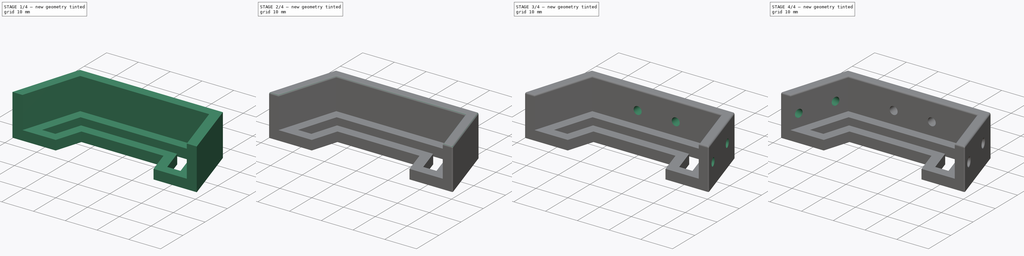
[diagram: build sequence overview — one tinted view per stage of 4, left to right]
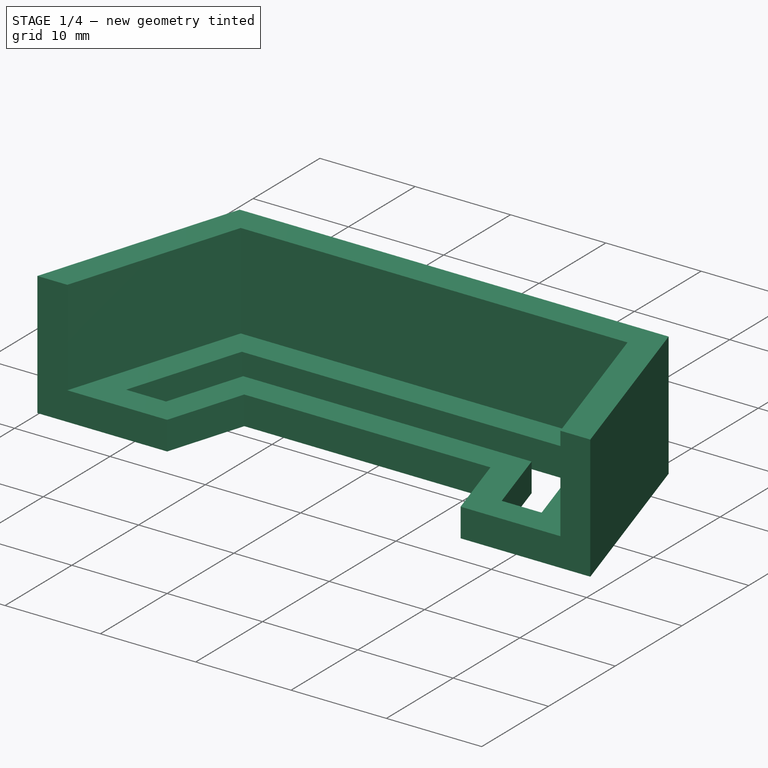
[diagram: stage 1 of 4 — iso view after this stage's code; geometry added in this stage tinted green]
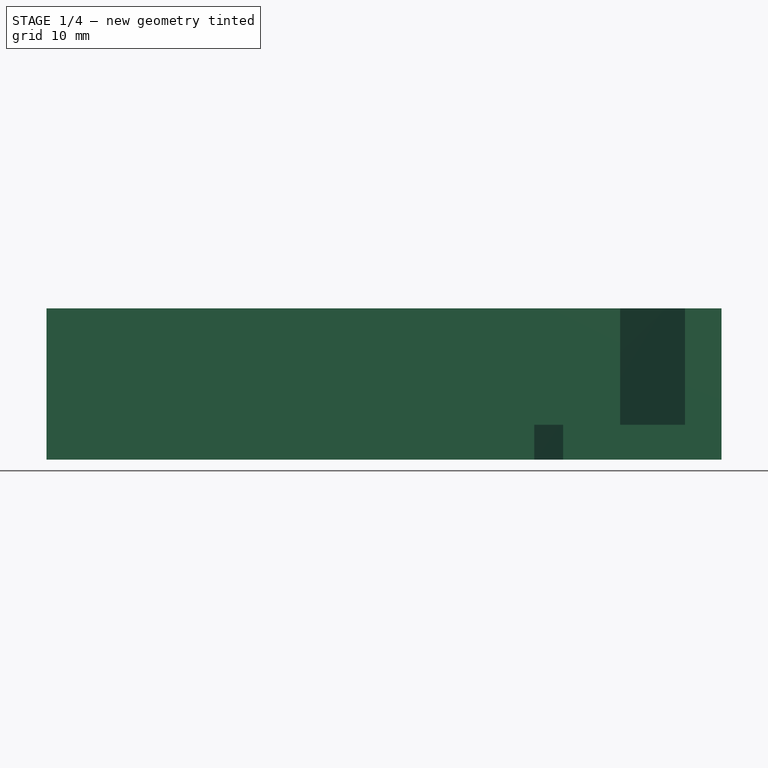
[diagram: stage 1 of 4 — front view after this stage's code; geometry added in this stage tinted green]
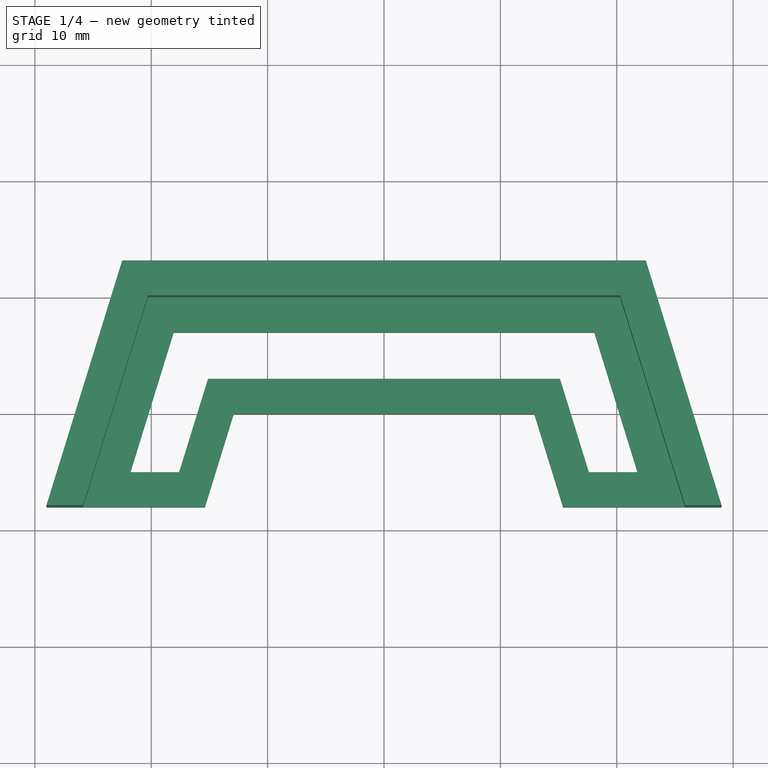
[diagram: stage 1 of 4 — top view after this stage's code; geometry added in this stage tinted green]
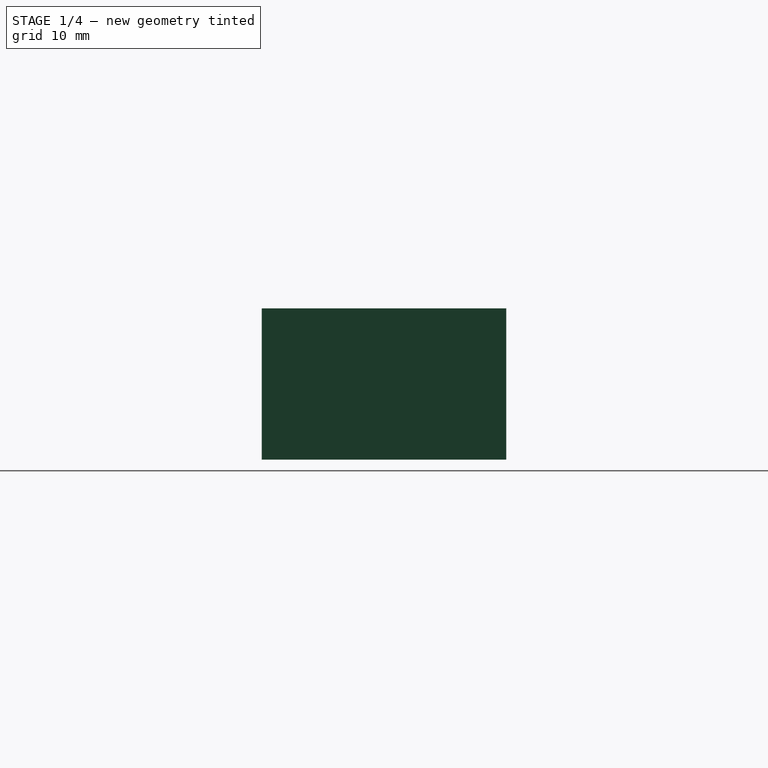
[diagram: stage 1 of 4 — right view after this stage's code; geometry added in this stage tinted green]
FCSTD DOCUMENT  (FreeCAD 0.17R12018 (Git))
Label: ferbot_sensor_v3
License: All rights reserved
LicenseURL: http://en.wikipedia.org/wiki/All_rights_reserved
objects: Sketcher::SketchObject×7, PartDesign::Fillet×7, PartDesign::Pocket×5, App::Part×1, PartDesign::Pad×1, PartDesign::Body×1
note: 27 computed .brp shape members not serialized (recipe doc carries the construction recipe); baked Part::Feature solids carry a one-line shape summary decoded from their .brp

FEATURE [App::Part] Part
  License = CC BY 3.0
  LicenseURL = http://creativecommons.org/licenses/by/3.0/
  Origin = -> Origin
FEATURE [Sketcher::SketchObject] Sketch
  MapMode = 5
  Support = -> [XY_Plane001]
  sketch-geometry (8):
    g0: LineSegment StartX=-22.5 StartY=13 StartZ=0 EndX=22.5 EndY=13 EndZ=0
    g1: LineSegment StartX=22.5 StartY=13 StartZ=0 EndX=29 EndY=-8.01785 EndZ=0
    g2: LineSegment StartX=29 StartY=-8.01785 StartZ=0 EndX=15.3925 EndY=-8.01785 EndZ=0
    g3: LineSegment StartX=15.3925 StartY=-8.01785 StartZ=0 EndX=12.9129 EndY=0 EndZ=0
    g4: LineSegment StartX=12.9129 StartY=0 StartZ=0 EndX=-12.9129 EndY=0 EndZ=0
    g5: LineSegment StartX=-12.9129 StartY=0 StartZ=0 EndX=-15.3925 EndY=-8.01785 EndZ=0
    g6: LineSegment StartX=-15.3925 StartY=-8.01785 StartZ=0 EndX=-29 EndY=-8.01785 EndZ=0
    g7: LineSegment StartX=-29 StartY=-8.01785 StartZ=0 EndX=-22.5 EndY=13 EndZ=0
  constraints (23):
    c: Horizontal(g0)
    c: Coincident(g0,g1)
    c: Coincident(g1,g2)
    c: Horizontal(g2)
    c: Coincident(g2,g3)
    c: Coincident(g3,g4)
    c: Horizontal(g4)
    c: Coincident(g4,g5)
    c: Coincident(g5,g6)
    c: Horizontal(g6)
    c: Coincident(g6,g7)
    c: Coincident(g7,g0)
    c: Parallel(g5,g7)
    c: Parallel(g3,g1)
    c: Equal(g2,g6)
    c: Symmetric(g4,g4,g-1)
    c: Distance(g3,g0) = 13
    c: Distance(g5,g7) = 13
    c: DistanceX(g0,g0) = 45
    c: DistanceX(g6,g1) = 58
    c: Symmetric(g0,g0,g-2)
    c: Distance(g7) = 22
    c: Equal(g1,g7)
FEATURE [PartDesign::Pad] Pad
  Length = 13
  Length2 = 100
  Profile = -> Sketch
  Type = 0
FEATURE [Sketcher::SketchObject] Sketch001
  MapMode = 5
  Support = -> [XY_Plane001]
FEATURE [Sketcher::SketchObject] Sketch002
  ExternalGeometry = -> [Pad]
  MapMode = 5
  Placement = pos=(0,0,13) rot=(0,0,1;0rad)
  Support = -> [Pad]
  sketch-geometry (8):
    g0: LineSegment StartX=-25.8598 StartY=-8.01785 StartZ=0 EndX=-15.3925 EndY=-8.01785 EndZ=0
    g1: LineSegment StartX=-15.3925 StartY=-8.01785 StartZ=0 EndX=-12.9129 EndY=0 EndZ=0
    g2: LineSegment StartX=-12.9129 StartY=0 StartZ=0 EndX=12.9129 EndY=0 EndZ=0
    g3: LineSegment StartX=12.9129 StartY=0 StartZ=0 EndX=15.3925 EndY=-8.01785 EndZ=0
    g4: LineSegment StartX=15.3925 StartY=-8.01785 StartZ=0 EndX=25.8598 EndY=-8.01785 EndZ=0
    g5: LineSegment StartX=25.8598 StartY=-8.01785 StartZ=0 EndX=20.2876 EndY=10 EndZ=0
    g6: LineSegment StartX=20.2876 StartY=10 StartZ=0 EndX=-20.2876 EndY=10 EndZ=0
    g7: LineSegment StartX=-20.2876 StartY=10 StartZ=0 EndX=-25.8598 EndY=-8.01785 EndZ=0
  constraints (21):
    c: Coincident(g0,g1)
    c: Coincident(g1,g2)
    c: Horizontal(g2)
    c: Coincident(g2,g3)
    c: Coincident(g3,g4)
    c: Coincident(g4,g5)
    c: Coincident(g5,g6)
    c: Horizontal(g6)
    c: Coincident(g6,g7)
    c: Coincident(g7,g0)
    c: Coincident(g0,g-6)
    c: Coincident(g1,g-3)
    c: Coincident(g2,g-4)
    c: Coincident(g3,g-5)
    c: Horizontal(g4)
    c: Horizontal(g0)
    c: Distance(g1,g6) = 10
    c: Distance(g0,g7) = 10
    c: Equal(g4,g0)
    c: Parallel(g3,g5)
    c: Parallel(g1,g7)
FEATURE [PartDesign::Pocket] Pocket
  BaseFeature = -> Pad
  Length = 10
  Profile = -> Sketch002
  Type = 0
FEATURE [Sketcher::SketchObject] Sketch003
  ExternalGeometry = -> [Pocket]
  MapMode = 5
  Placement = pos=(0,0,0) rot=(1,0,0;3.14159rad)
  Support = -> [Pocket]
  sketch-geometry (8):
    g0: LineSegment StartX=-21.7918 StartY=5.01785 StartZ=0 EndX=-17.6049 EndY=5.01785 EndZ=0
    g1: LineSegment StartX=-17.6049 StartY=5.01785 StartZ=0 EndX=-15.1253 EndY=-3 EndZ=0
    g2: LineSegment StartX=-15.1253 StartY=-3 StartZ=0 EndX=15.1253 EndY=-3 EndZ=0
    g3: LineSegment StartX=15.1253 StartY=-3 StartZ=0 EndX=17.6049 EndY=5.01785 EndZ=0
    g4: LineSegment StartX=17.6049 StartY=5.01785 StartZ=0 EndX=21.7918 EndY=5.01785 EndZ=0
    g5: LineSegment StartX=21.7918 StartY=5.01785 StartZ=0 EndX=18.0752 EndY=-7 EndZ=0
    g6: LineSegment StartX=18.0752 StartY=-7 StartZ=0 EndX=-18.0752 EndY=-7 EndZ=0
    g7: LineSegment StartX=-18.0752 StartY=-7 StartZ=0 EndX=-21.7918 EndY=5.01785 EndZ=0
  constraints (24):
    c: Horizontal(g0)
    c: Coincident(g0,g1)
    c: Coincident(g1,g2)
    c: Horizontal(g2)
    c: Coincident(g2,g3)
    c: Coincident(g3,g4)
    c: Horizontal(g4)
    c: Coincident(g4,g5)
    c: Coincident(g5,g6)
    c: Horizontal(g6)
    c: Coincident(g6,g7)
    c: Coincident(g7,g0)
    c: Distance(g2,g5) = 4
    c: Parallel(g5,g3)
    c: Parallel(g1,g7)
    c: Equal(g4,g0)
    c: Distance(g1,g6) = 4
    c: Parallel(g-3,g1)
    c: Parallel(g-4,g3)
    c: Symmetric(g6,g5,g-2)
    c: Distance(g6,g-5) = 6
    c: Distance(g5,g-6) = 6
    c: Distance(g0,g-7) = 3
    c: Equal(g5,g7)
FEATURE [PartDesign::Pocket] Pocket001
  BaseFeature = -> Pocket
  Length = 3
  Profile = -> Sketch003
  Type = 0
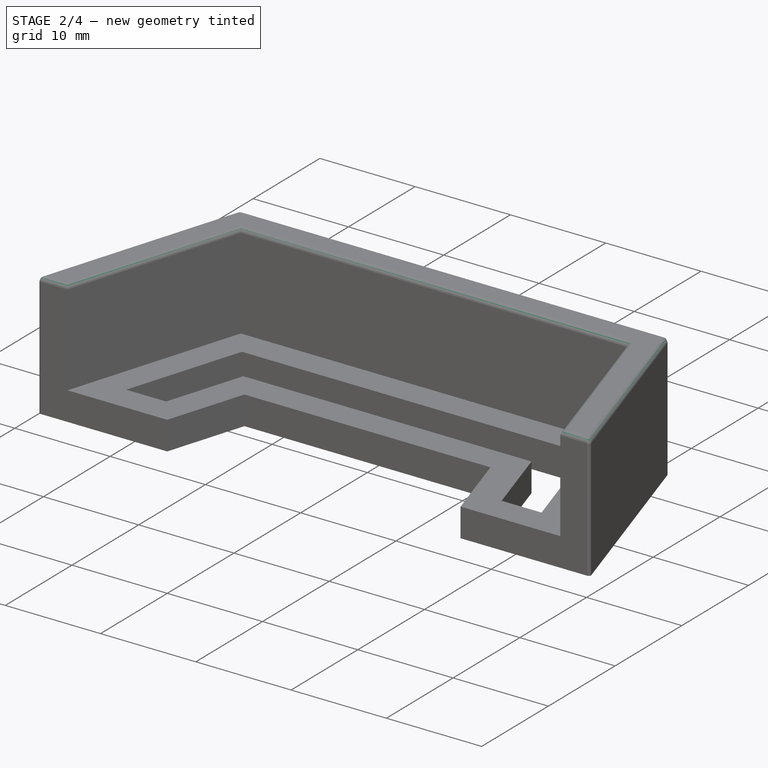
[diagram: stage 2 of 4 — iso view after this stage's code; geometry added in this stage tinted green]
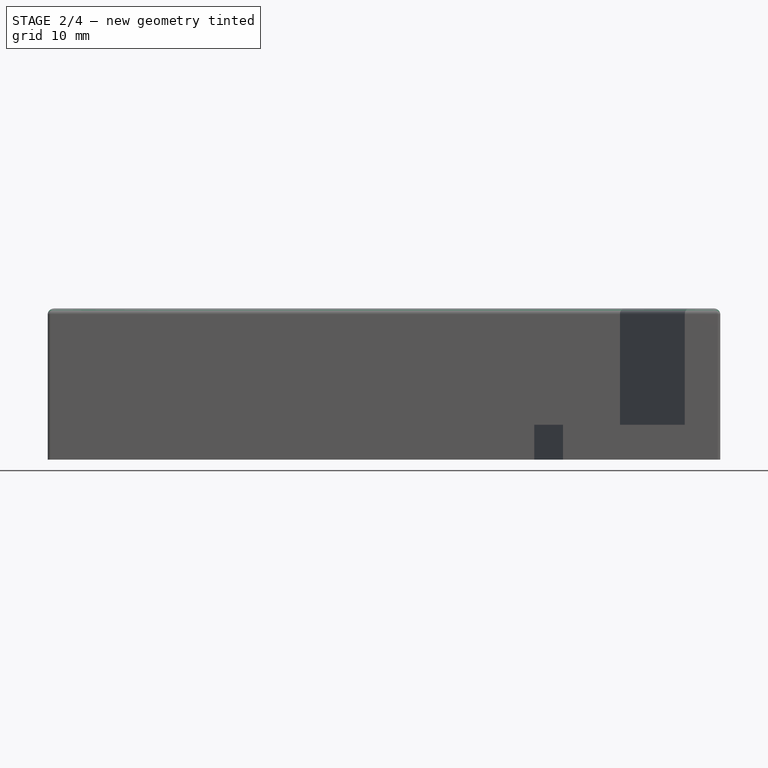
[diagram: stage 2 of 4 — front view after this stage's code; geometry added in this stage tinted green]
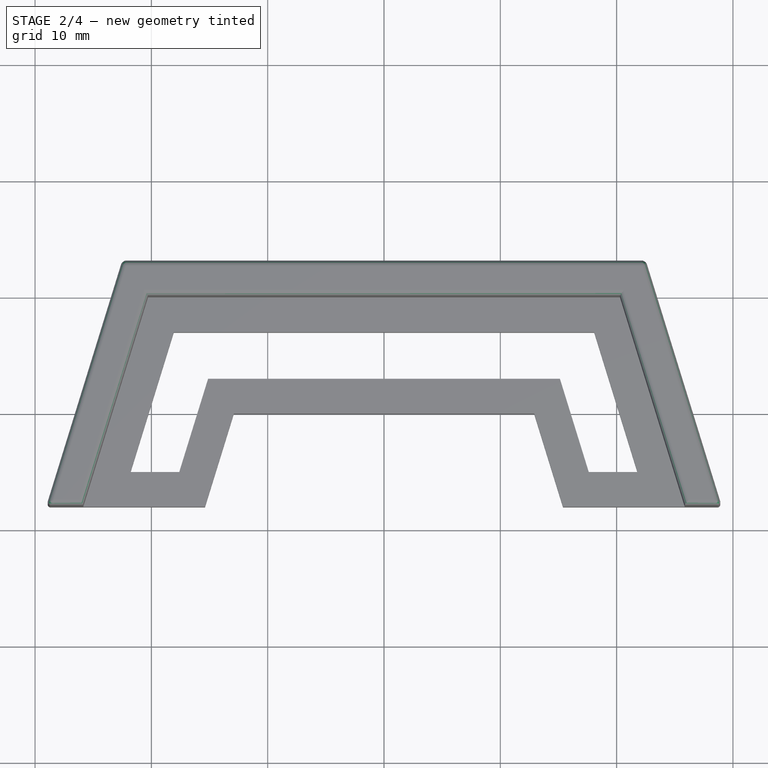
[diagram: stage 2 of 4 — top view after this stage's code; geometry added in this stage tinted green]
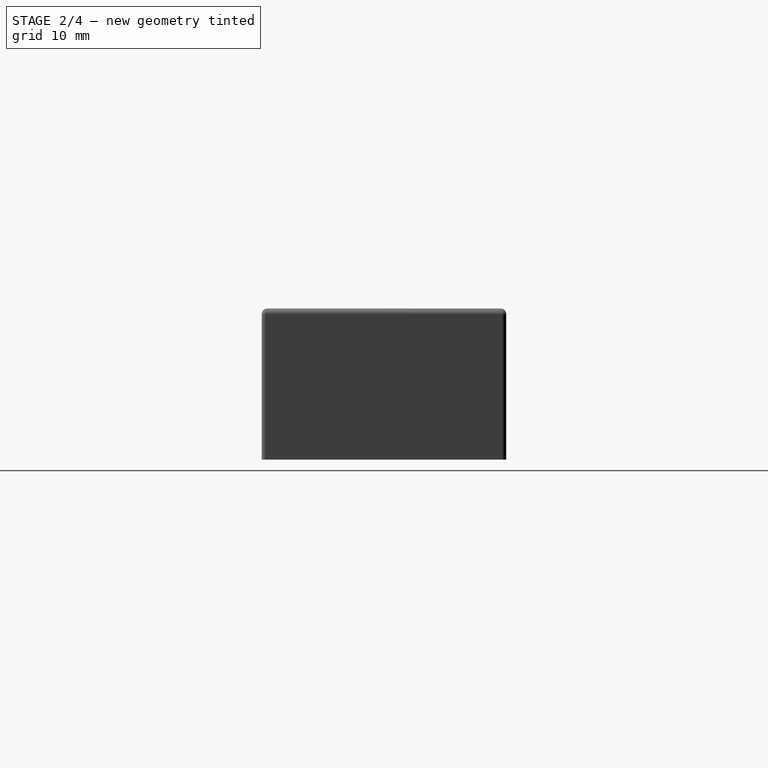
[diagram: stage 2 of 4 — right view after this stage's code; geometry added in this stage tinted green]
FEATURE [PartDesign::Fillet] Fillet
  Base = -> Pocket001 [Face5]
  BaseFeature = -> Pocket001
  Radius = 0.5
FEATURE [PartDesign::Fillet] Fillet001
  Base = -> Fillet [Edge1,Edge4]
  BaseFeature = -> Fillet
  Radius = 0.5
FEATURE [PartDesign::Fillet] Fillet002
  Base = -> Fillet001 [Edge43,Edge41]
  BaseFeature = -> Fillet001
  Radius = 0.25
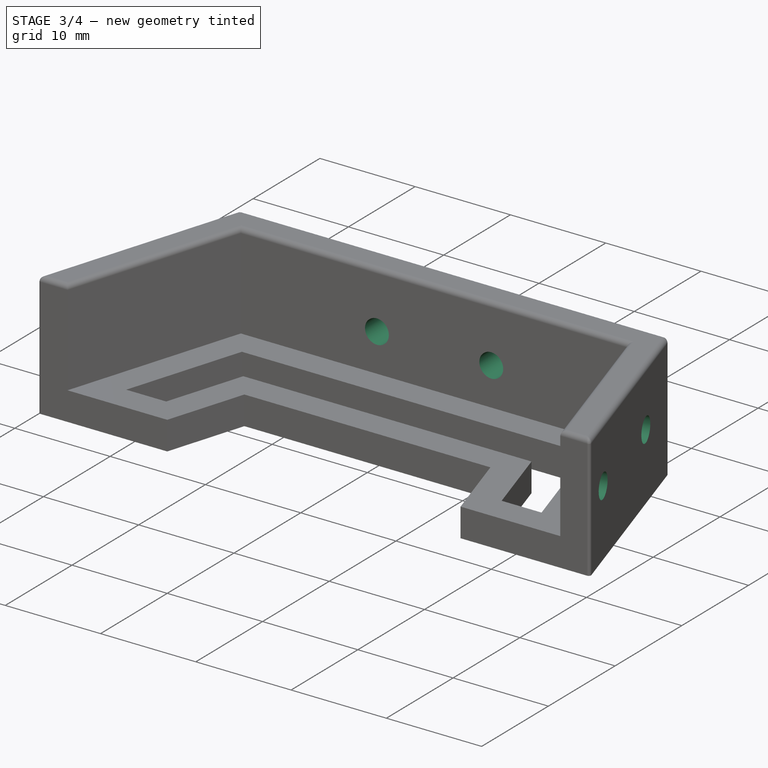
[diagram: stage 3 of 4 — iso view after this stage's code; geometry added in this stage tinted green]
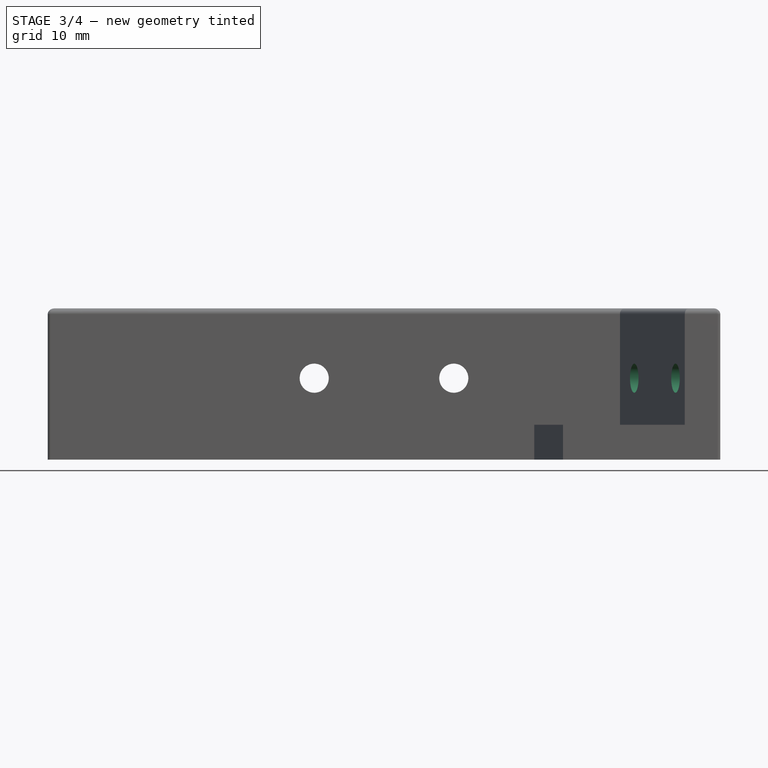
[diagram: stage 3 of 4 — front view after this stage's code; geometry added in this stage tinted green]
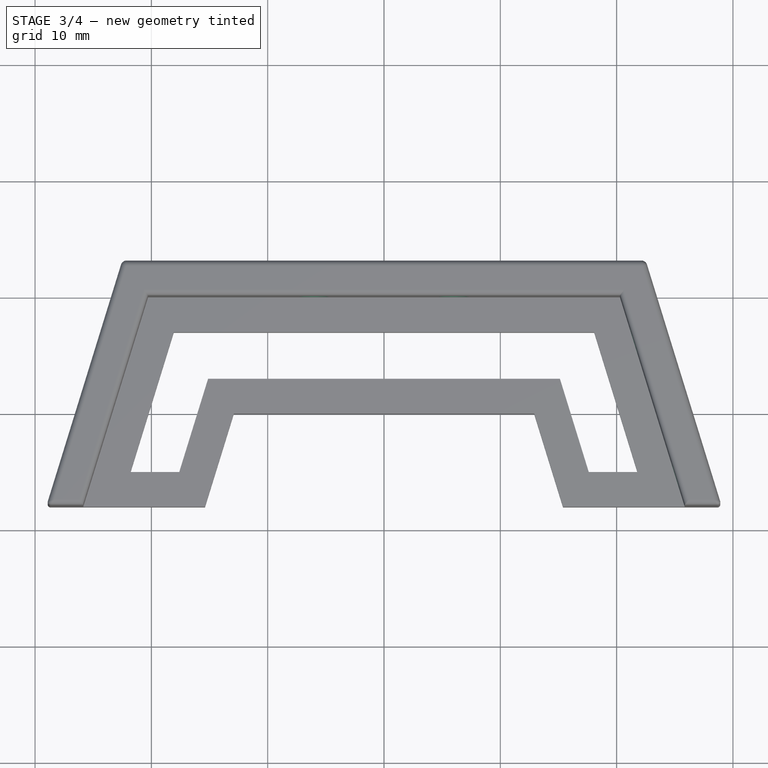
[diagram: stage 3 of 4 — top view after this stage's code; geometry added in this stage tinted green]
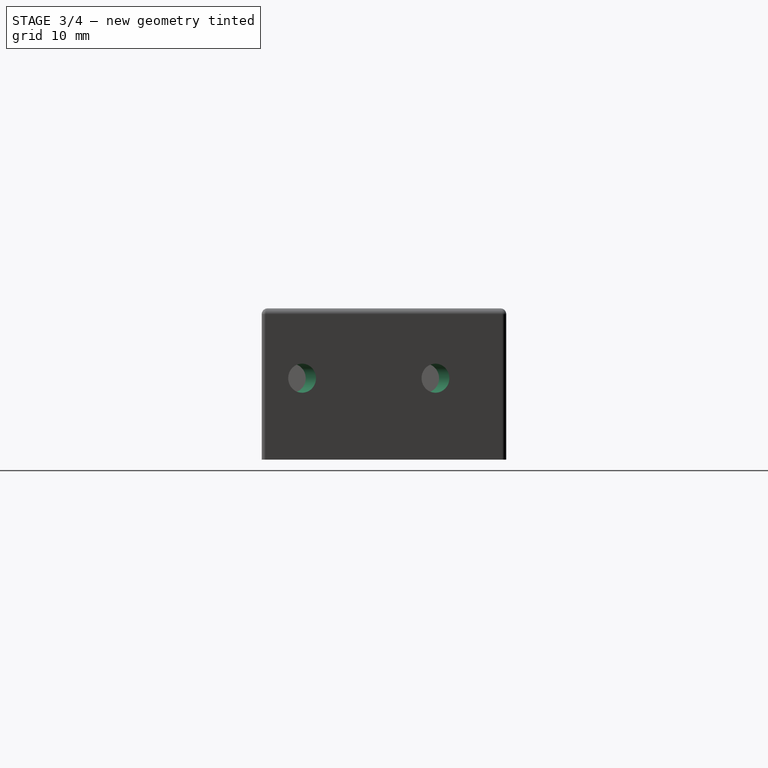
[diagram: stage 3 of 4 — right view after this stage's code; geometry added in this stage tinted green]
FEATURE [Sketcher::SketchObject] Sketch004
  ExternalGeometry = -> [Fillet002]
  MapMode = 5
  Placement = pos=(0,13,0) rot=(0,0.707107,0.707107;3.14159rad)
  Support = -> [Fillet002]
  sketch-geometry (2):
    g0: Circle CenterX=-6 CenterY=7 CenterZ=0 NormalX=0 NormalY=0 NormalZ=1 Radius=1.25
    g1: Circle CenterX=6 CenterY=7 CenterZ=0 NormalX=0 NormalY=0 NormalZ=1 Radius=1.25
  constraints (6):
    c: DistanceX(g0,g1) = 12
    c: DistanceY(g0,g1) = 0
    c: Equal(g0,g1)
    c: Radius(g0) = 1.25
    c: Symmetric(g0,g1,g-2)
    c: Distance(g0,g-3) = 6
FEATURE [PartDesign::Pocket] Pocket002
  BaseFeature = -> Fillet002
  Length = 3
  Profile = -> Sketch004
  Type = 0
FEATURE [PartDesign::Fillet] Fillet003
  Base = -> Pocket002 [Edge35]
  BaseFeature = -> Pocket002
  Radius = 0.25
FEATURE [PartDesign::Fillet] Fillet004
  Base = -> Fillet003 [Edge6]
  BaseFeature = -> Fillet003
  Radius = 0.25
FEATURE [Sketcher::SketchObject] Sketch005
  ExternalGeometry = -> [Fillet004]
  MapMode = 5
  Placement = pos=(24.2053,7.48577,0) rot=(0.462378,0.62698,0.62698;2.27539rad)
  Support = -> [Fillet004]
  sketch-geometry (2):
    g0: Circle CenterX=-12.5968 CenterY=7 CenterZ=0 NormalX=0 NormalY=0 NormalZ=1 Radius=1.25
    g1: Circle CenterX=-0.596823 CenterY=7 CenterZ=0 NormalX=0 NormalY=0 NormalZ=1 Radius=1.25
  constraints (6):
    c: DistanceX(g0,g1) = 12
    c: DistanceY(g0,g1) = 0
    c: Radius(g0) = 1.25
    c: Equal(g0,g1)
    c: Distance(g0,g-3) = 6
    c: Distance(g1,g-4) = 6
FEATURE [PartDesign::Pocket] Pocket003
  BaseFeature = -> Fillet004
  Length = 3
  Profile = -> Sketch005
  Type = 0
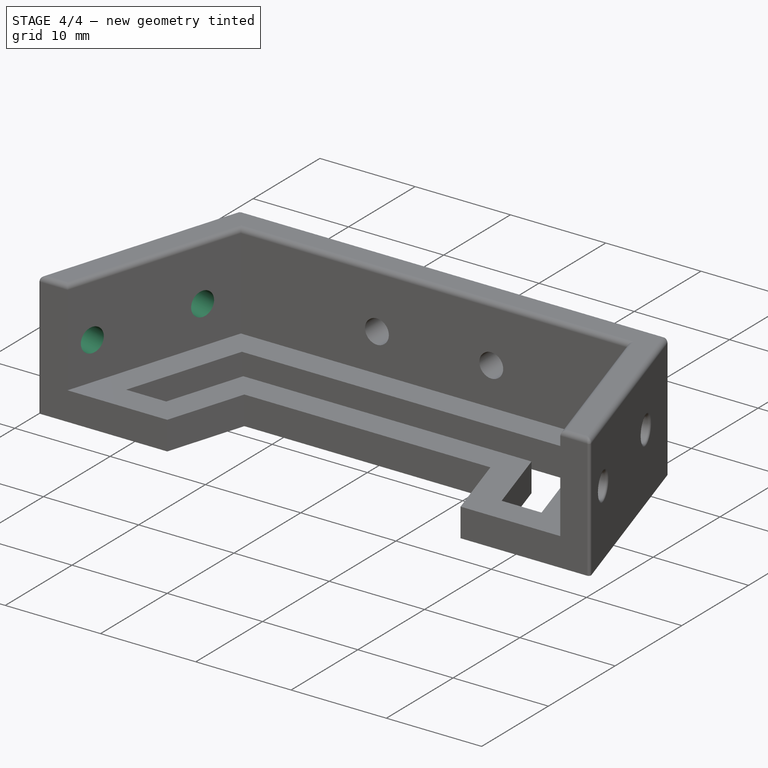
[diagram: stage 4 of 4 — iso view after this stage's code; geometry added in this stage tinted green]
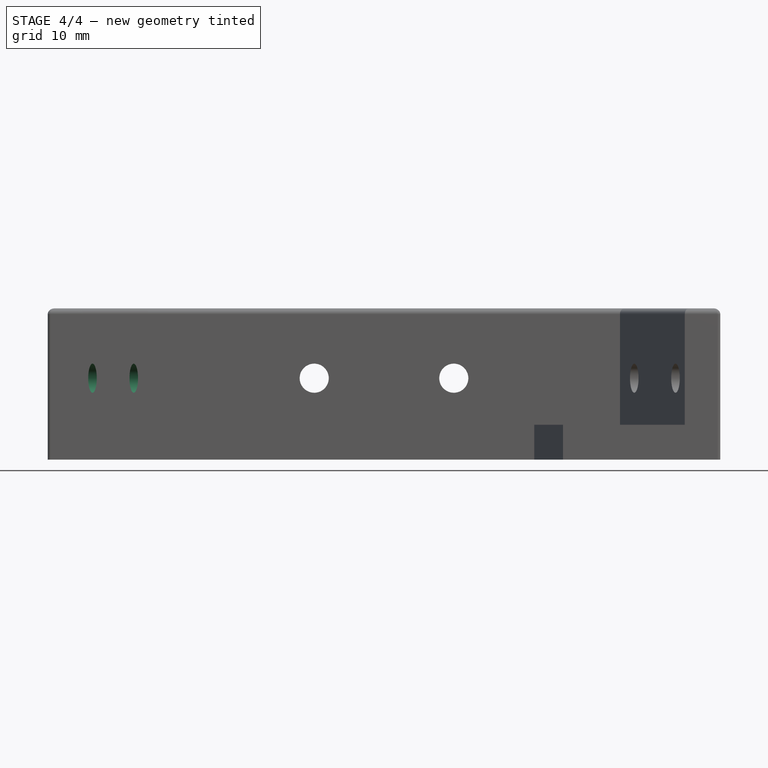
[diagram: stage 4 of 4 — front view after this stage's code; geometry added in this stage tinted green]
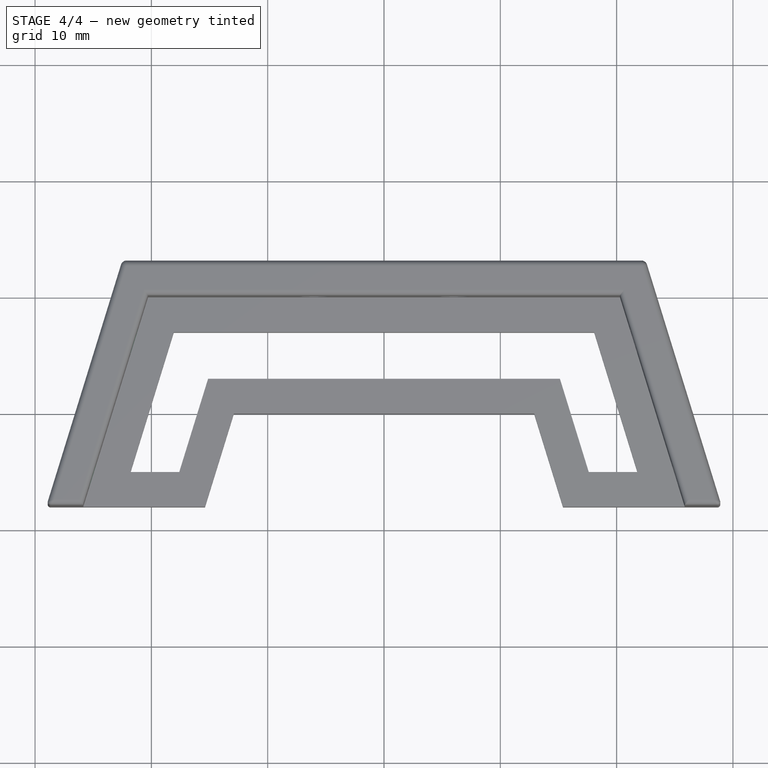
[diagram: stage 4 of 4 — top view after this stage's code; geometry added in this stage tinted green]
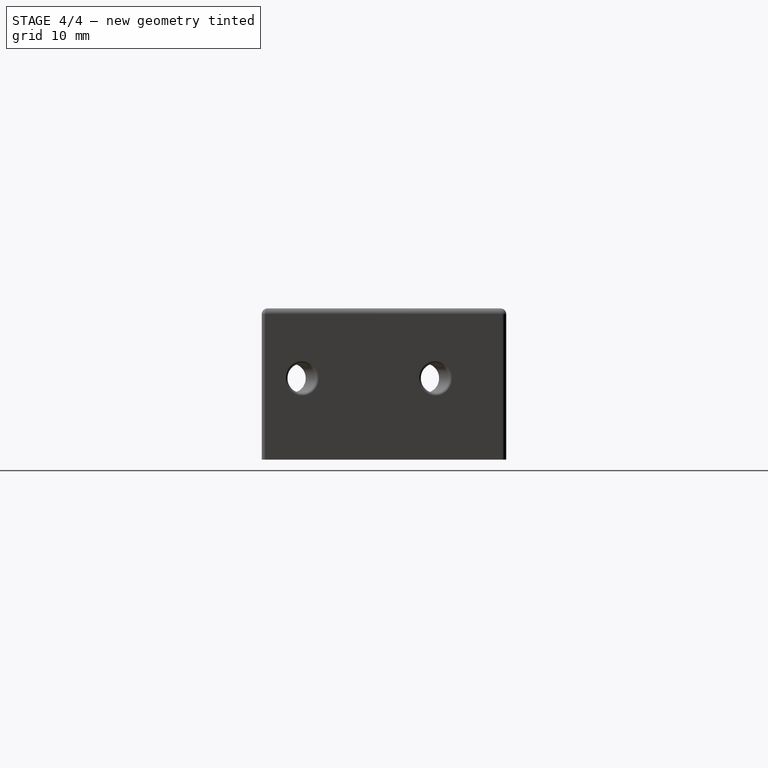
[diagram: stage 4 of 4 — right view after this stage's code; geometry added in this stage tinted green]
FEATURE [PartDesign::Fillet] Fillet005
  Base = -> Pocket003 [Edge57,Edge56]
  BaseFeature = -> Pocket003
  Radius = 0.25
FEATURE [Sketcher::SketchObject] Sketch006
  ExternalGeometry = -> [Fillet005]
  MapMode = 5
  Placement = pos=(-24.2053,7.48577,0) rot=(-0.462378,0.62698,0.62698;4.00779rad)
  Support = -> [Fillet005]
  sketch-geometry (2):
    g0: Circle CenterX=0.596823 CenterY=7 CenterZ=0 NormalX=0 NormalY=0 NormalZ=1 Radius=1.25
    g1: Circle CenterX=12.5968 CenterY=7 CenterZ=0 NormalX=0 NormalY=0 NormalZ=1 Radius=1.25
  constraints (6):
    c: Radius(g0) = 1.25
    c: Equal(g0,g1)
    c: DistanceX(g0,g1) = 12
    c: DistanceY(g1,g0) = 0
    c: Distance(g1,g-3) = 6
    c: Distance(g0,g-4) = 6
FEATURE [PartDesign::Pocket] Pocket004
  BaseFeature = -> Fillet005
  Length = 3
  Profile = -> Sketch006
  Type = 0
FEATURE [PartDesign::Fillet] Fillet006
  Base = -> Pocket004 [Edge61,Edge62]
  BaseFeature = -> Pocket004
  Radius = 0.25
FEATURE [PartDesign::Body] Body
  Group = -> [Sketch,Pad,Sketch001,Sketch002,Pocket,Sketch003,Pocket001,Fillet,Fillet001,Fillet002,Sketch004,Pocket002,Fillet003,Fillet004,Sketch005,Pocket003,Fillet005,Sketch006,Pocket004,Fillet006]
  Origin = -> Origin001
  Tip = -> Fillet006
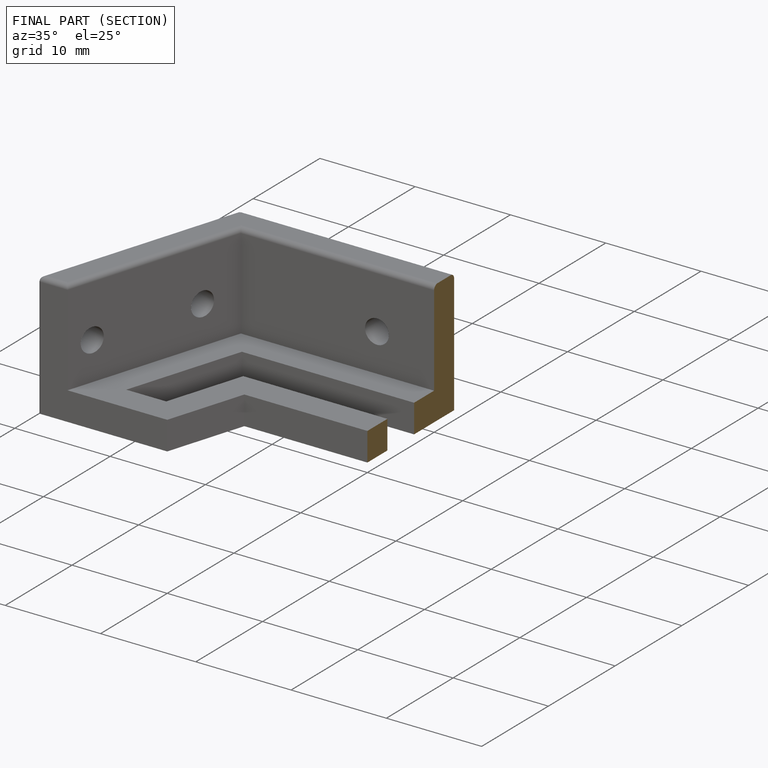
[diagram: finished part — half-section view (interior)]
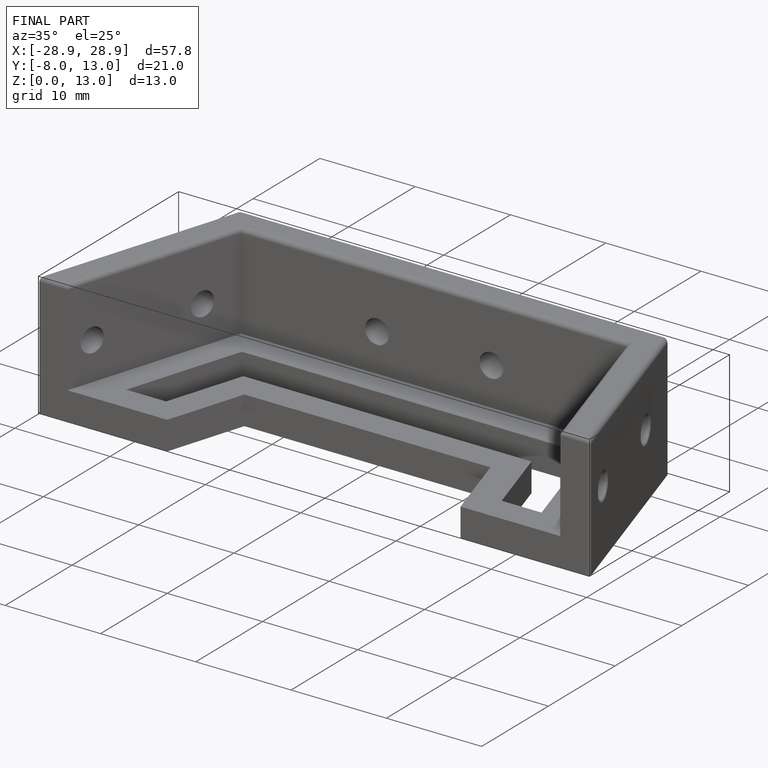
[diagram: finished part — iso view with bounding-box wireframe]
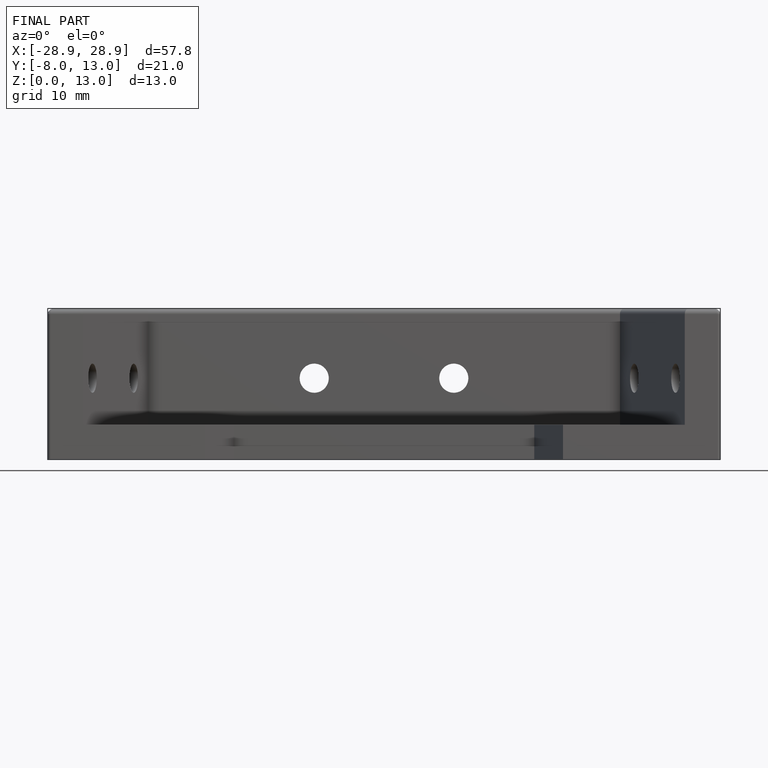
[diagram: finished part — front view with bounding-box wireframe]
